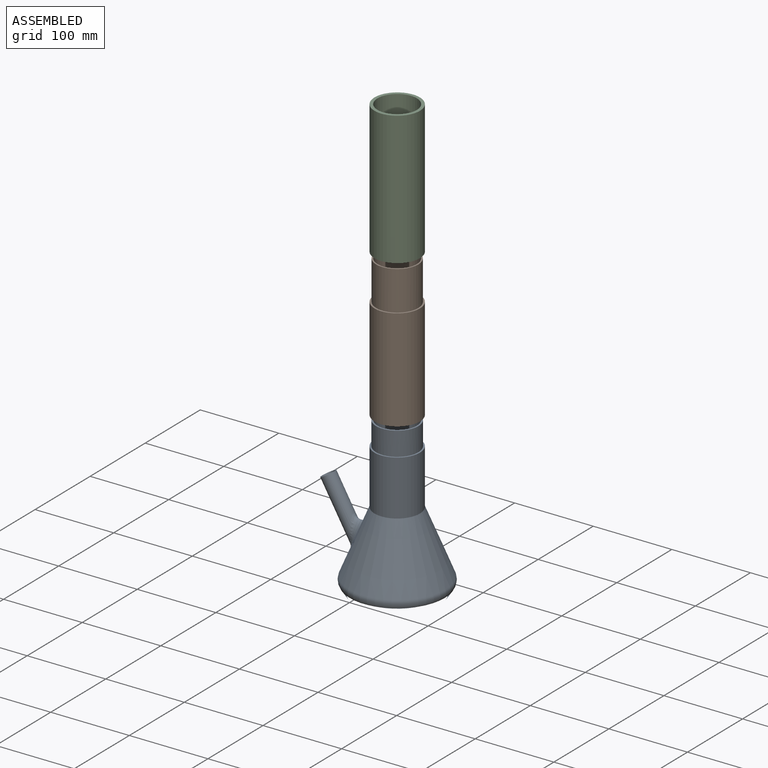
[diagram: assembled view]
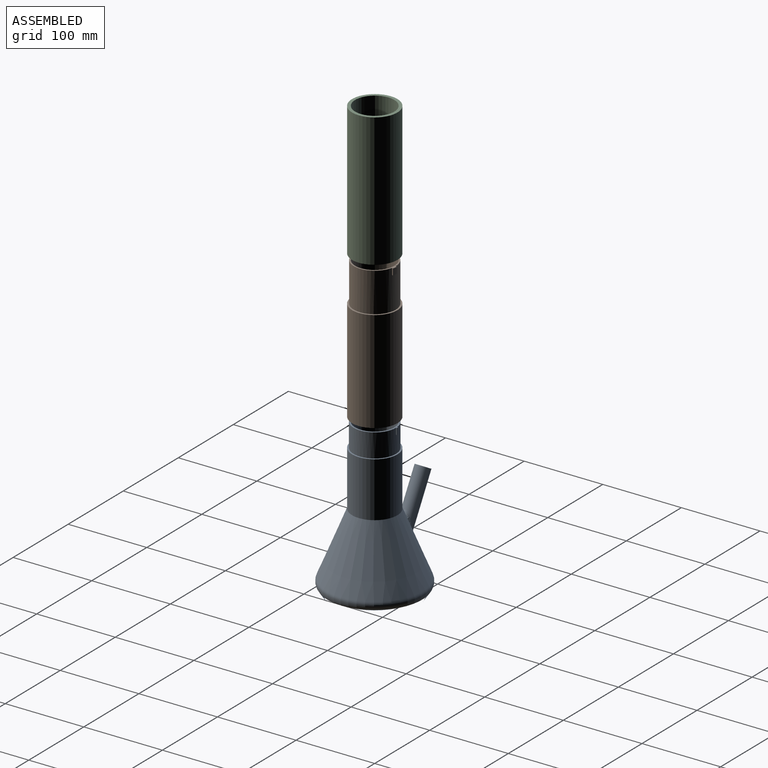
[diagram: assembled view, second angle]
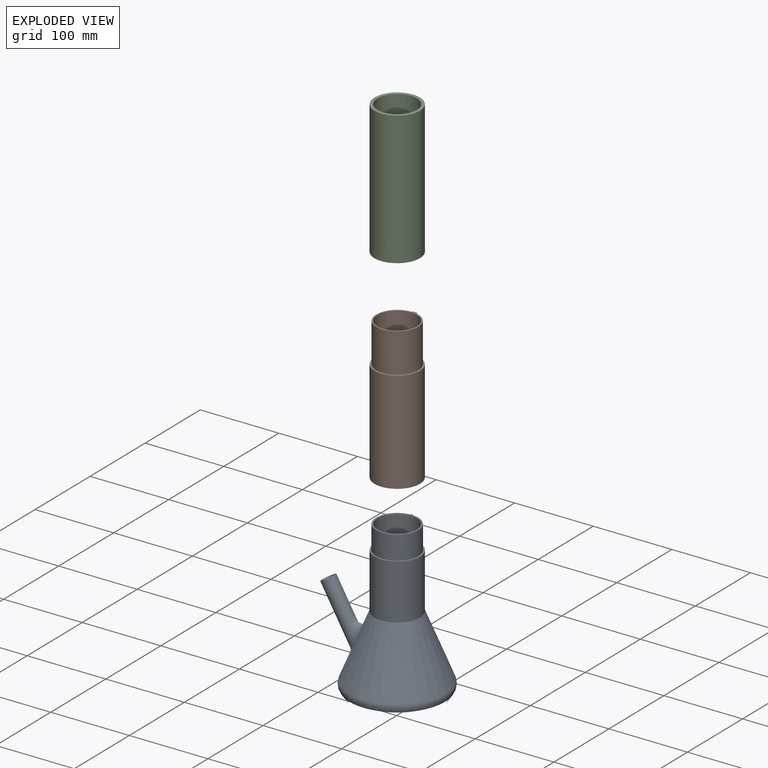
[diagram: exploded view]
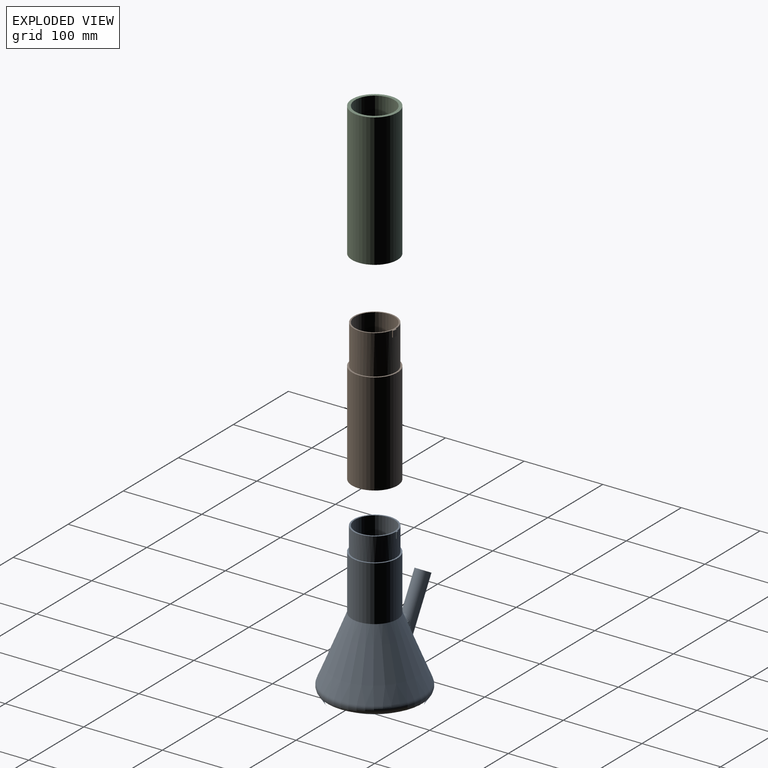
[diagram: exploded view, second angle]
ASSEMBLY  parts=3 mates=2
PART A: 26 faces, bbox 162.8x134.3x200 mm
  f0: cylinder r=26.94mm len=53.89mm, axis (0,0,-1), area 5060.2mm2, adj f9,f10,f20,f21,f22
  f1: cylinder r=5.2mm len=10.4mm, axis (-0.5,0,0.87), area 84.2mm2, adj f15,f24,f25
  f2: cone r=28.89mm half-angle=22.2deg, axis (0,0,-1), area 23063.7mm2, adj f4,f17,f23
  f3: cone r=56.63mm half-angle=22.2deg, axis (0,0,-1), area 20544.2mm2, adj f7,f8,f18
  f4: cylinder r=28.89mm len=70mm, axis (0,0,-1), area 12706.1mm2, adj f2,f10
  f5: plane 105.52x105.52mm, normal (0,0,-1), area 8745.6mm2, adj f16
  f6: plane 89.58x89.58mm, normal (0,0,1), area 6303.2mm2, adj f7
  f7: torus R=44.79mm, axis (0,0,-1), area 8463.5mm2, adj f3,f6
  f8: cylinder r=25mm len=100mm, axis (0,0,-1), area 15708mm2, adj f3,f9
  f9: plane 55.09x53.89mm, normal (0,0,1), area 320.2mm2, adj f0,f8,f19,f20,f21
  f10: plane 57.78x57.78mm, normal (0,0,1), area 341.1mm2, adj f0,f4
  f11: cylinder r=9.2mm len=24.96mm, axis (-0.5,0,0.87), area 455mm2, adj f18,f24
  f12: cylinder r=9.2mm len=76.99mm, axis (-0.5,0,0.87), area 3792.6mm2, adj f13,f17
  f13: plane 18.4x15.94mm, normal (-0.5,0,0.87), area 64.8mm2, adj f12,f14
  f14: cylinder r=8mm len=92.96mm, axis (-0.5,0,0.87), area 4931mm2, adj f13,f15
  f15: plane 16x13.86mm, normal (-0.5,0,0.87), area 116.1mm2, adj f1,f14
  f16: cone r=52.76mm half-angle=33.9deg, axis (0,0,1), area 4842.2mm2, adj f5,f23
  f17: bspline ~44.98x32.23mm, area 1316.2mm2, adj f2,f12
  f18: bspline ~33.23x31.29mm, area 719.1mm2, adj f3,f11,f25
  f19: cylinder r=28.14mm len=8mm, axis (0,0,1), area 19.6mm2, adj f9,f20,f21,f22
  f20: plane 8x1.2mm, normal (-1,-0.09,0), area 9.6mm2, adj f0,f9,f19,f22
  f21: plane 8x1.2mm, normal (1,0,0), area 9.6mm2, adj f0,f9,f19,f22
  f22: plane 2.45x1.3mm, normal (0,0,-1), area 2.9mm2, adj f0,f19,f20,f21
  f23: torus R=52.06mm, axis (0,0,-1), area 3791.5mm2, adj f2,f16
  f24: torus R=4.2mm, axis (0.5,0,-0.87), area 248.1mm2, adj f1,f11,f25
  f25: bspline ~14.21x7.19mm, area 78.1mm2, adj f1,f18,f24
PART B: 24 faces, bbox 57.8x57.8x180 mm
  f0: revolved ~20.72x20.51mm, area 867.8mm2, adj f1
  f1: cylinder r=25mm len=150mm, axis (0,0,-1), area 21668.7mm2, adj f0,f2,f3,f4,f5,f6,f22,f23
  f2: revolved ~19.9x19.9mm, area 867.8mm2, adj f1
  f3: revolved ~19.9x18.19mm, area 63.1mm2, adj f1
  f4: revolved ~20.72x20.51mm, area 867.8mm2, adj f1
  f5: revolved ~19.9x18.19mm, area 63.1mm2, adj f1
  f6: plane 55.14x53.5mm, normal (0,0,1), area 294.1mm2, adj f1,f7,f9,f10,f11
  f7: plane 8x1.64mm, normal (-1,0.01,0), area 13.1mm2, adj f6,f8,f9,f11
  f8: plane 5.99x2.31mm, normal (0,0,-1), area 9.6mm2, adj f7,f9,f10,f11
  f9: cylinder r=28.39mm len=8mm, axis (0,0,1), area 48.2mm2, adj f6,f7,f8,f10
  f10: plane 8x1.6mm, normal (0.97,-0.22,0), area 13.1mm2, adj f6,f8,f9,f11
  f11: cylinder r=26.75mm len=53.5mm, axis (0,0,-1), area 8358.4mm2, adj f6,f7,f8,f10,f12
  f12: plane 57.78x57.78mm, normal (0,0,1), area 373.9mm2, adj f11,f13
  f13: cylinder r=28.89mm len=130mm, axis (0,0,-1), area 23597mm2, adj f12,f14
  f14: plane 57.78x57.78mm, normal (0,0,-1), area 285.5mm2, adj f13,f15,f16,f20,f21
  f15: cylinder r=28.44mm len=30mm, axis (0,0,-1), area 92.2mm2, adj f14,f16,f21,f22
  f16: plane 30x1.19mm, normal (-1,0,0), area 25.7mm2, adj f14,f15,f17,f19,f20,f22
  f17: cylinder r=28.37mm len=9mm, axis (0,0,1), area 54.9mm2, adj f16,f18,f19,f22
  f18: plane 9x1.09mm, normal (-0.97,0.22,0), area 10.1mm2, adj f17,f19,f20,f22
  f19: plane 6.05x1.82mm, normal (0,0,1), area 6.7mm2, adj f16,f17,f18,f20
  f20: cylinder r=27.25mm len=54.5mm, axis (0,0,-1), area 4995.2mm2, adj f14,f16,f18,f19,f21,f22
  f21: plane 30x1.19mm, normal (1,0.1,0), area 35.8mm2, adj f14,f15,f20,f22
  f22: plane 55.69x54.5mm, normal (0,0,-1), area 379.6mm2, adj f1,f15,f16,f17,f18,f20,f21
  f23: revolved ~19.9x19.9mm, area 867.7mm2, adj f1
PART C: 11 faces, bbox 57.8x57.8x169.5 mm
  f0: cylinder r=28.44mm len=49.5mm, axis (0,0,1), area 413.5mm2, adj f1,f3,f5,f6,f7,f10
  f1: plane 40.5x1.41mm, normal (-0.97,0.23,0), area 58.5mm2, adj f0,f2,f5,f7
  f2: cylinder r=27mm len=54mm, axis (0,0,1), area 8004.9mm2, adj f1,f3,f5,f6,f7,f10
  f3: plane 49.5x1.44mm, normal (1,0,0), area 71.5mm2, adj f0,f2,f5,f10
  f4: cylinder r=28.89mm len=169.5mm, axis (0,0,1), area 30766.9mm2, adj f5,f9
  f5: plane 57.78x57.78mm, normal (0,0,-1), area 322.3mm2, adj f0,f1,f2,f3,f4
  f6: plane 9x1.22mm, normal (-0.85,0.53,0), area 13mm2, adj f0,f2,f7,f10
  f7: plane 8.88x4.81mm, normal (0,0,1), area 13.1mm2, adj f0,f1,f2,f6
  f8: cylinder r=25mm len=120mm, axis (0,0,-1), area 18849.6mm2, adj f9,f10
  f9: plane 57.78x57.78mm, normal (0,0,1), area 658.4mm2, adj f4,f8
  f10: plane 55.44x54mm, normal (0,0,-1), area 349.2mm2, adj f0,f2,f3,f6,f8
PLACE A t=(-213.64,20.58,-69.81)mm fixed
PLACE B t=(-213.64,20.58,-34.02)mm
PLACE C t=(-213.64,20.58,23.25)mm
MATE slider B.f20 <-> A.f0  axis (0,0,-1) through (-213.64,20.58,135.98)mm
MATE slider B.f11 <-> C.f2  axis (0,0,1) through (-213.64,20.58,315.98)mm
